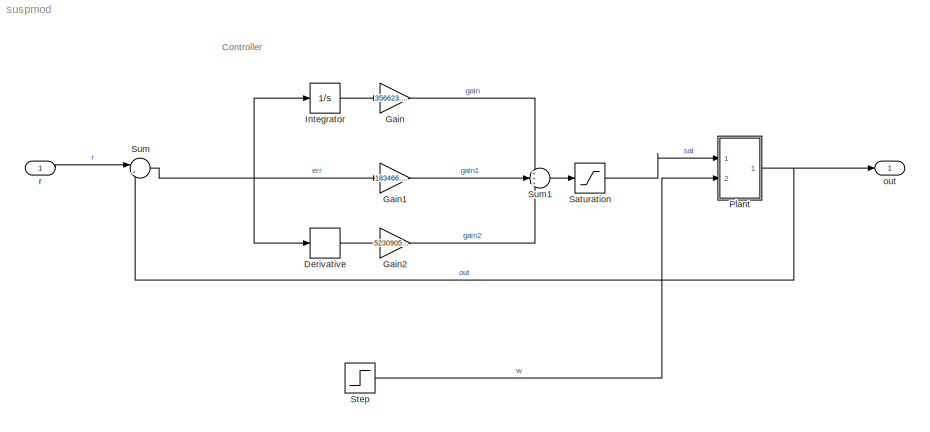
MODEL suspmod
KIND model
BLOCK [Derivative] Derivative
  SID = 42
BLOCK [Gain] Gain
  Gain = 356623.87
  OutDataTypeStr = Inherit: Inherit via internal rule
  ParamDataTypeStr = Inherit: Inherit via internal rule
  SID = 43
  SaturateOnIntegerOverflow = off
BLOCK [Gain] Gain1
  Gain = 183466.47
  OutDataTypeStr = Inherit: Inherit via internal rule
  ParamDataTypeStr = Inherit: Inherit via internal rule
  SID = 44
  SaturateOnIntegerOverflow = off
BLOCK [Gain] Gain2
  Gain = 52309059.4534
  OutDataTypeStr = Inherit: Inherit via internal rule
  ParamDataTypeStr = Inherit: Inherit via internal rule
  SID = 45
  SaturateOnIntegerOverflow = off
BLOCK [Integrator] Integrator
  Ports = [1, 1]
  SID = 46
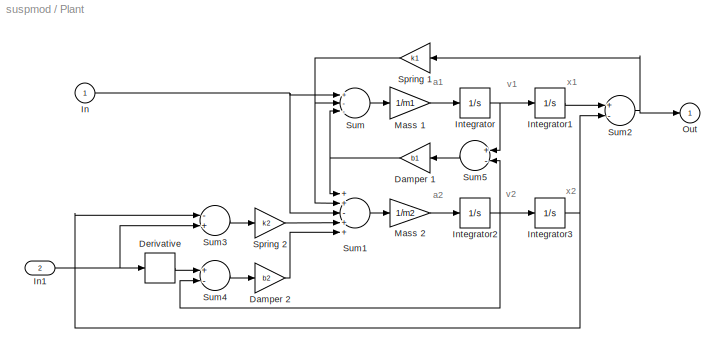
BLOCK [SubSystem] Plant
  Ports = [2, 1]
  RequestExecContextInheritance = off
  SID = 27
  Variant = off
BLOCK [Gain] Plant/Damper 1
  Gain = b1
  SID = 2
BLOCK [Gain] Plant/Damper 2
  Gain = b2
  SID = 3
BLOCK [Derivative] Plant/Derivative
  SID = 4
BLOCK [Inport] Plant/In
  IconDisplay = Port number
  SID = 28
BLOCK [Inport] Plant/In1
  IconDisplay = Port number
  Port = 2
  SID = 35
BLOCK [Integrator] Plant/Integrator
  Ports = [1, 1]
  SID = 5
BLOCK [Integrator] Plant/Integrator1
  Ports = [1, 1]
  SID = 6
BLOCK [Integrator] Plant/Integrator2
  Ports = [1, 1]
  SID = 7
BLOCK [Integrator] Plant/Integrator3
  Ports = [1, 1]
  SID = 8
BLOCK [Gain] Plant/Mass 1
  Gain = 1/m1
  SID = 9
BLOCK [Gain] Plant/Mass 2
  Gain = 1/m2
  SID = 10
BLOCK [Outport] Plant/Out
  IconDisplay = Port number
  InitialOutput = 0
  SID = 29
BLOCK [Gain] Plant/Spring 1
  Gain = k1
  SID = 11
BLOCK [Gain] Plant/Spring 2
  Gain = k2
  SID = 12
BLOCK [Sum] Plant/Sum
  Inputs = +--
  Ports = [3, 1]
  SID = 13
BLOCK [Sum] Plant/Sum1
  Inputs = ++-++
  Ports = [5, 1]
  SID = 14
BLOCK [Sum] Plant/Sum2
  Inputs = +-
  Ports = [2, 1]
  SID = 15
BLOCK [Sum] Plant/Sum3
  Inputs = -+
  Ports = [2, 1]
  SID = 16
BLOCK [Sum] Plant/Sum4
  Inputs = +-
  Ports = [2, 1]
  SID = 17
BLOCK [Sum] Plant/Sum5
  Inputs = +-
  Ports = [2, 1]
  SID = 18
BLOCK [Saturate] Saturation
  InputPortMap = u0
  LowerLimit = -15
  Ports = [1, 1]
  SID = 47
  UpperLimit = 15
BLOCK [Step] Step
  After = -.1
  SID = 53
  SampleTime = 0
  Time = 0
BLOCK [Sum] Sum
  IconShape = round
  InputSameDT = off
  Inputs = |+-
  OutDataTypeStr = Inherit: Inherit via internal rule
  Ports = [2, 1]
  SID = 32
  SaturateOnIntegerOverflow = off
BLOCK [Sum] Sum1
  IconShape = round
  InputSameDT = off
  Inputs = +++
  OutDataTypeStr = Inherit: Inherit via internal rule
  Ports = [3, 1]
  SID = 48
  SaturateOnIntegerOverflow = off
BLOCK [Outport] out
  IconDisplay = Port number
  SID = 38
BLOCK [Inport] r
  IconDisplay = Port number
  SID = 52
ANNOTATION (root): Controller
ANNOTATION Plant: a1
ANNOTATION Plant: a2
ANNOTATION Plant: v1
ANNOTATION Plant: v2
ANNOTATION Plant: x1
ANNOTATION Plant: x2
LINE Derivative:1 -> Gain2:1
LINE Gain1:1 -> Sum1:2
LINE Gain2:1 -> Sum1:3
LINE Gain:1 -> Sum1:1
LINE Integrator:1 -> Gain:1
NET Plant/Damper 1:1 -> Plant/Sum1:1, Plant/Sum:3
LINE Plant/Damper 2:1 -> Plant/Sum1:5
LINE Plant/Derivative:1 -> Plant/Sum4:1
NET Plant/In1:1 -> Plant/Derivative:1, Plant/Sum3:2
NET Plant/In:1 -> Plant/Sum1:3, Plant/Sum:1
LINE Plant/Integrator1:1 -> Plant/Sum2:1
NET Plant/Integrator2:1 -> Plant/Integrator3:1, Plant/Sum4:2, Plant/Sum5:2
NET Plant/Integrator3:1 -> Plant/Sum2:2, Plant/Sum3:1
NET Plant/Integrator:1 -> Plant/Integrator1:1, Plant/Sum5:1
LINE Plant/Mass 1:1 -> Plant/Integrator:1
LINE Plant/Mass 2:1 -> Plant/Integrator2:1
NET Plant/Spring 1:1 -> Plant/Sum1:2, Plant/Sum:2
LINE Plant/Spring 2:1 -> Plant/Sum1:4
LINE Plant/Sum1:1 -> Plant/Mass 2:1
NET Plant/Sum2:1 -> Plant/Out:1, Plant/Spring 1:1
LINE Plant/Sum3:1 -> Plant/Spring 2:1
LINE Plant/Sum4:1 -> Plant/Damper 2:1
LINE Plant/Sum5:1 -> Plant/Damper 1:1
LINE Plant/Sum:1 -> Plant/Mass 1:1
NET Plant:1 -> Sum:2, out:1
LINE Saturation:1 -> Plant:1
LINE Step:1 -> Plant:2
LINE Sum1:1 -> Saturation:1
NET Sum:1 -> Derivative:1, Gain1:1, Integrator:1
LINE r:1 -> Sum:1
note: NET lines group one-source signal fan-out (src -> all destinations, sorted); 1:1 wires keep LINE
